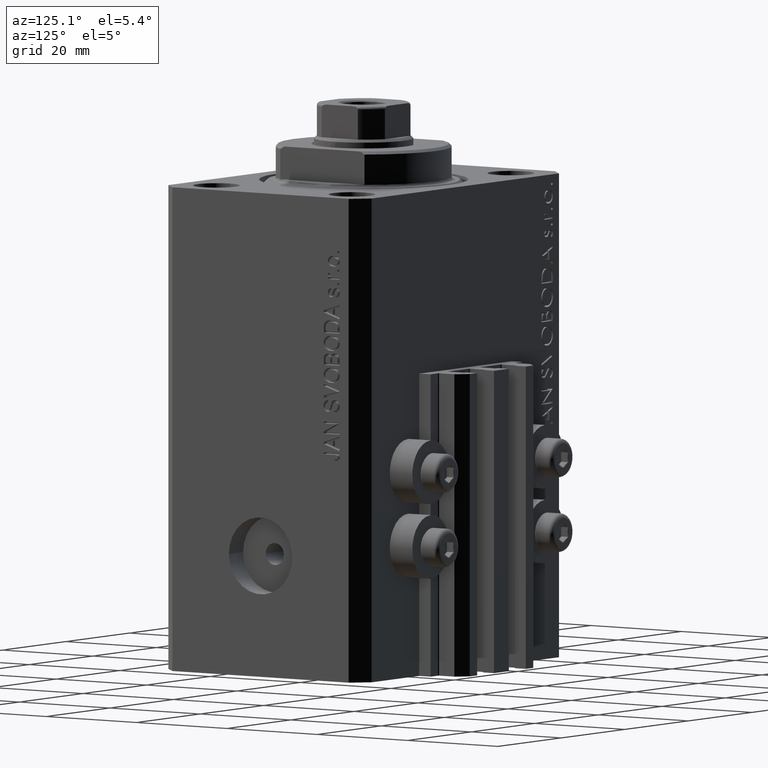
[diagram: clean part render]
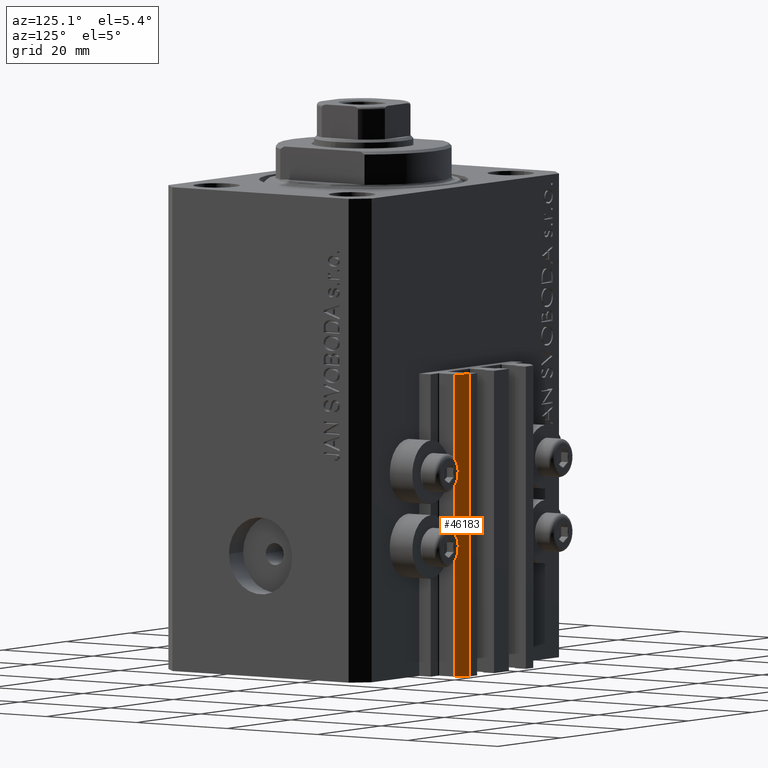
[diagram: same view with one face highlighted and labeled with its STEP entity id]
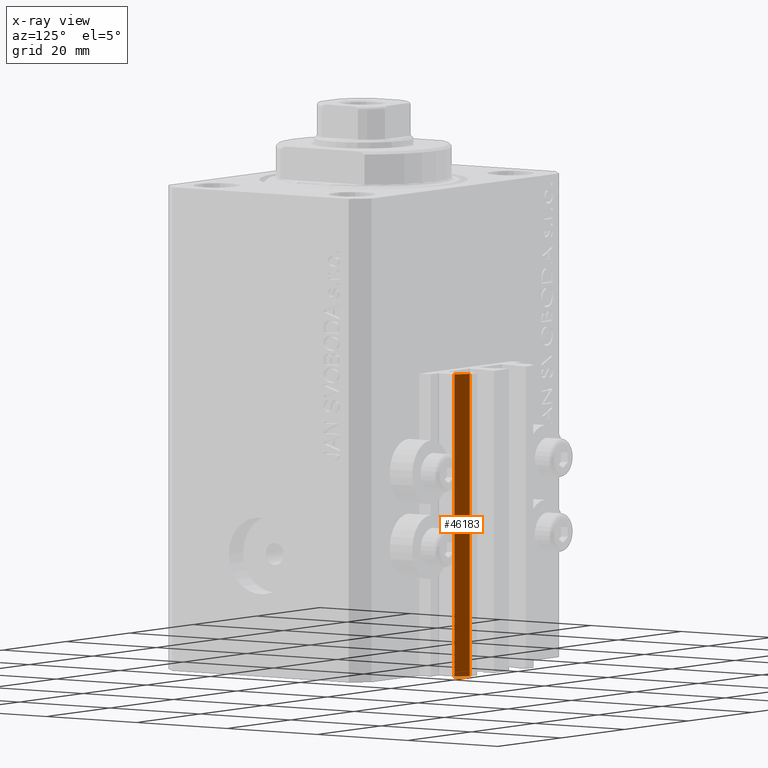
[diagram: x-ray of the same camera — body ghosted, the highlighted face saturated]
A machine part, auxiliary view. The second image highlights one B-rep face of the part: STEP entity #46183.
The next image is the same camera in x-ray: the body ghosted, the highlighted face saturated — about 0% of this face is hidden behind the body in this view.
In plain terms, the highlighted planar face has unit normal (0.7071, 0.7071, 0).
Its self-contained STEP definition (entity closure, byte-faithful):
#72 = DIRECTION ( 'NONE',  ( -0.7071067811865510144, 0.7071067811865441310, 0.000000000000000000 ) ) ;
#431 = LINE ( 'NONE', #22972, #42909 ) ;
#546 = PLANE ( 'NONE',  #9089 ) ;
#898 = DIRECTION ( 'NONE',  ( -0.7071067811865507924, 0.7071067811865441310, 0.000000000000000000 ) ) ;
#2859 = VECTOR ( 'NONE', #18548, 1000.000000000000000 ) ;
#3668 = EDGE_CURVE ( 'NONE', #32703, #21394, #36871, .T. ) ;
#7970 = DIRECTION ( 'NONE',  ( 0.7071067811865441310, 0.7071067811865510144, -0.000000000000000000 ) ) ;
#8078 = CARTESIAN_POINT ( 'NONE',  ( 12.00000000000000178, 28.49999999999950973, -33.00000000000000000 ) ) ;
#8562 = DIRECTION ( 'NONE',  ( 0.000000000000000000, 0.000000000000000000, 1.000000000000000000 ) ) ;
#9089 = AXIS2_PLACEMENT_3D ( 'NONE', #32692, #7970, #72 ) ;
#10621 = CARTESIAN_POINT ( 'NONE',  ( 12.00000000000000178, 28.49999999999950973, -88.00000000000000000 ) ) ;
#13816 = EDGE_LOOP ( 'NONE', ( #27238, #35601, #43745, #43171 ) ) ;
#14449 = FACE_OUTER_BOUND ( 'NONE', #13816, .T. ) ;
#14721 = VERTEX_POINT ( 'NONE', #19528 ) ;
#14863 = VECTOR ( 'NONE', #898, 1000.000000000000000 ) ;
#15907 = EDGE_CURVE ( 'NONE', #14721, #32703, #46322, .T. ) ;
#17761 = DIRECTION ( 'NONE',  ( 0.000000000000000000, 0.000000000000000000, 1.000000000000000000 ) ) ;
#18548 = DIRECTION ( 'NONE',  ( -0.7071067811865507924, 0.7071067811865441310, 0.000000000000000000 ) ) ;
#19154 = VECTOR ( 'NONE', #17761, 1000.000000000000000 ) ;
#19528 = CARTESIAN_POINT ( 'NONE',  ( 12.00000000000000178, 28.49999999999950973, -88.00000000000000000 ) ) ;
#21394 = VERTEX_POINT ( 'NONE', #35805 ) ;
#22972 = CARTESIAN_POINT ( 'NONE',  ( 9.999999999999994671, 30.49999999999949551, -88.00000000000000000 ) ) ;
#25931 = EDGE_CURVE ( 'NONE', #44104, #21394, #431, .T. ) ;
#27238 = ORIENTED_EDGE ( 'NONE', *, *, #3668, .F. ) ;
#29491 = CARTESIAN_POINT ( 'NONE',  ( 12.00000000000000178, 28.49999999999950973, -33.00000000000000000 ) ) ;
#31913 = CARTESIAN_POINT ( 'NONE',  ( 12.00000000000000178, 28.49999999999950973, -88.00000000000000000 ) ) ;
#32692 = CARTESIAN_POINT ( 'NONE',  ( 12.00000000000000178, 28.49999999999950973, -88.00000000000000000 ) ) ;
#32703 = VERTEX_POINT ( 'NONE', #29491 ) ;
#35601 = ORIENTED_EDGE ( 'NONE', *, *, #15907, .F. ) ;
#35805 = CARTESIAN_POINT ( 'NONE',  ( 9.999999999999994671, 30.49999999999949551, -33.00000000000000000 ) ) ;
#36871 = LINE ( 'NONE', #8078, #14863 ) ;
#37232 = LINE ( 'NONE', #10621, #2859 ) ;
#38433 = EDGE_CURVE ( 'NONE', #14721, #44104, #37232, .T. ) ;
#42909 = VECTOR ( 'NONE', #8562, 1000.000000000000000 ) ;
#43171 = ORIENTED_EDGE ( 'NONE', *, *, #25931, .T. ) ;
#43745 = ORIENTED_EDGE ( 'NONE', *, *, #38433, .T. ) ;
#44104 = VERTEX_POINT ( 'NONE', #44699 ) ;
#44699 = CARTESIAN_POINT ( 'NONE',  ( 9.999999999999994671, 30.49999999999949551, -88.00000000000000000 ) ) ;
#46183 = ADVANCED_FACE ( 'NONE', ( #14449 ), #546, .T. ) ;
#46322 = LINE ( 'NONE', #31913, #19154 ) ;